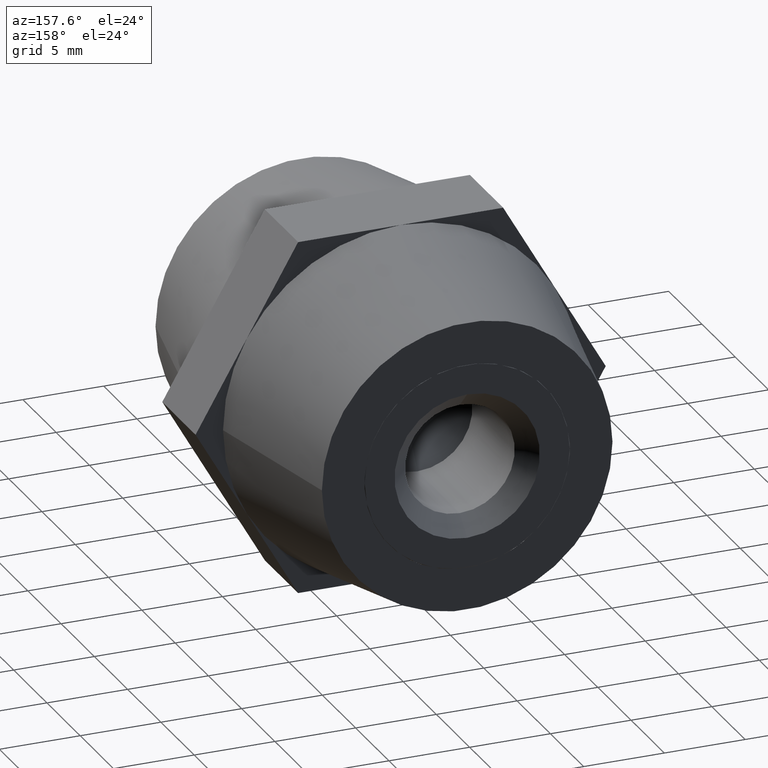
[diagram: clean part render]
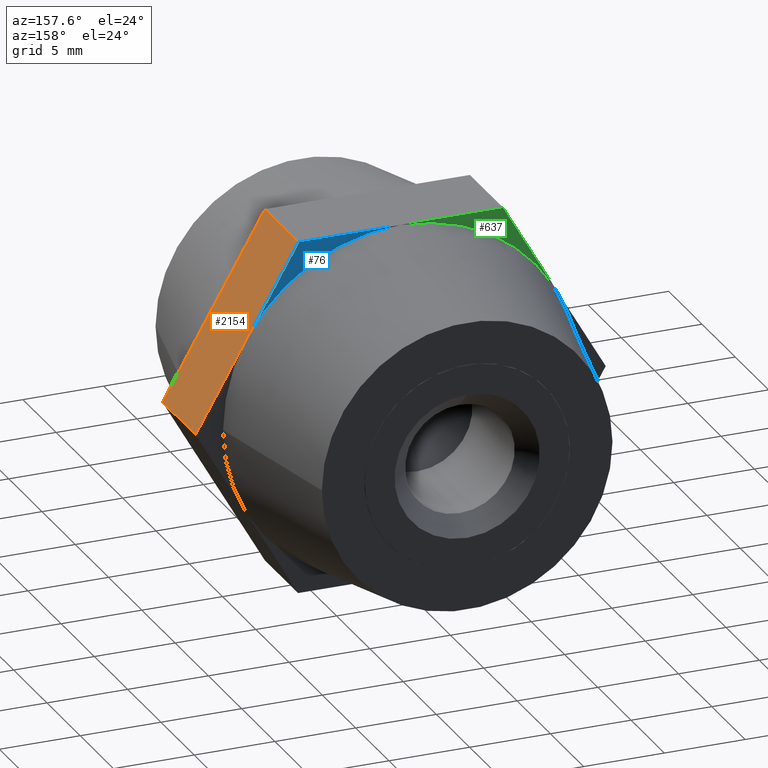
[diagram: same view with three faces highlighted in distinct colors, each labeled with its STEP entity id]
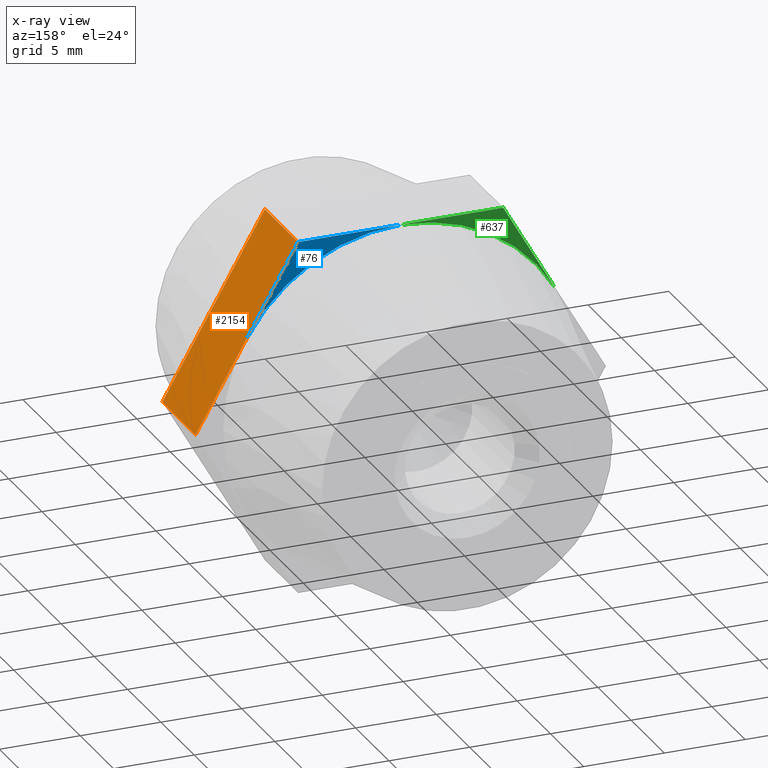
[diagram: x-ray of the same camera — body ghosted, the three highlighted faces saturated]
A machine part, auxiliary view with three faces highlighted in distinct colors.
The next image is the same camera in x-ray (body ghosted, the three faces saturated) — at least one of them is partly hidden behind the body in this view.
Their STEP definitions:

[orange] entity #2154 — the highlighted planar face has unit normal (-0.866, 0, -0.5).
#163 = CARTESIAN_POINT ( 'NONE',  ( 6.350852961085890600, 2.500000000000000000, 11.00000000000000000 ) ) ;
#280 = DIRECTION ( 'NONE',  ( 0.4999999999999998900, 0.0000000000000000000, -0.8660254037844387100 ) ) ;
#287 = LINE ( 'NONE', #866, #649 ) ;
#342 = LINE ( 'NONE', #3532, #3034 ) ;
#402 = ORIENTED_EDGE ( 'NONE', *, *, #3662, .T. ) ;
#438 = CARTESIAN_POINT ( 'NONE',  ( 6.350852961085890600, 2.500000000000000000, 11.00000000000000000 ) ) ;
#454 = CARTESIAN_POINT ( 'NONE',  ( 6.350852961085890600, -2.500000000000000000, 11.00000000000000000 ) ) ;
#530 = CARTESIAN_POINT ( 'NONE',  ( 6.350852961085890600, 2.500000000000000000, 11.00000000000000000 ) ) ;
#582 = VERTEX_POINT ( 'NONE', #2719 ) ;
#649 = VECTOR ( 'NONE', #1451, 1000.000000000000000 ) ;
#749 = CARTESIAN_POINT ( 'NONE',  ( 6.350852961085890600, -2.500000000000000000, 11.00000000000000000 ) ) ;
#866 = CARTESIAN_POINT ( 'NONE',  ( 6.350852961085890600, -2.500000000000000000, 11.00000000000000000 ) ) ;
#981 = EDGE_LOOP ( 'NONE', ( #402, #2869, #2472, #2764, #1196, #2899 ) ) ;
#991 = VECTOR ( 'NONE', #2222, 1000.000000000000000 ) ;
#1045 = LINE ( 'NONE', #2607, #3100 ) ;
#1065 = DIRECTION ( 'NONE',  ( -0.8660254037844387100, 0.0000000000000000000, -0.4999999999999998900 ) ) ;
#1103 = EDGE_CURVE ( 'NONE', #582, #2452, #342, .T. ) ;
#1175 = DIRECTION ( 'NONE',  ( 0.0000000000000000000, -1.000000000000000000, 0.0000000000000000000 ) ) ;
#1196 = ORIENTED_EDGE ( 'NONE', *, *, #2389, .F. ) ;
#1336 = VERTEX_POINT ( 'NONE', #2450 ) ;
#1451 = DIRECTION ( 'NONE',  ( 0.4999999999999998900, 0.0000000000000000000, -0.8660254037844387100 ) ) ;
#1474 = EDGE_CURVE ( 'NONE', #1336, #2452, #2645, .T. ) ;
#1543 = AXIS2_PLACEMENT_3D ( 'NONE', #3109, #1065, #3092 ) ;
#1662 = CARTESIAN_POINT ( 'NONE',  ( 12.70170592217176000, -2.500000000000000000, -2.884158672701469700E-015 ) ) ;
#1794 = EDGE_CURVE ( 'NONE', #3060, #582, #1045, .T. ) ;
#1958 = LINE ( 'NONE', #438, #2054 ) ;
#2054 = VECTOR ( 'NONE', #3084, 1000.000000000000000 ) ;
#2154 = ADVANCED_FACE ( 'NONE', ( #3475 ), #2817, .F. ) ;
#2222 = DIRECTION ( 'NONE',  ( 0.4999999999999998900, 0.0000000000000000000, -0.8660254037844387100 ) ) ;
#2389 = EDGE_CURVE ( 'NONE', #3436, #3060, #1958, .T. ) ;
#2450 = CARTESIAN_POINT ( 'NONE',  ( 9.526279441628831900, -2.500000000000000000, 5.500000000000000000 ) ) ;
#2452 = VERTEX_POINT ( 'NONE', #1662 ) ;
#2472 = ORIENTED_EDGE ( 'NONE', *, *, #1103, .F. ) ;
#2581 = DIRECTION ( 'NONE',  ( 0.0000000000000000000, -1.000000000000000000, 0.0000000000000000000 ) ) ;
#2607 = CARTESIAN_POINT ( 'NONE',  ( 6.350852961085890600, 2.500000000000000000, 11.00000000000000000 ) ) ;
#2645 = LINE ( 'NONE', #749, #991 ) ;
#2719 = CARTESIAN_POINT ( 'NONE',  ( 12.70170592217176000, 2.500000000000000000, -2.884158672701469700E-015 ) ) ;
#2764 = ORIENTED_EDGE ( 'NONE', *, *, #1794, .F. ) ;
#2777 = EDGE_CURVE ( 'NONE', #3436, #3341, #3335, .T. ) ;
#2817 = PLANE ( 'NONE',  #1543 ) ;
#2869 = ORIENTED_EDGE ( 'NONE', *, *, #1474, .T. ) ;
#2899 = ORIENTED_EDGE ( 'NONE', *, *, #2777, .T. ) ;
#3034 = VECTOR ( 'NONE', #1175, 1000.000000000000000 ) ;
#3060 = VERTEX_POINT ( 'NONE', #3597 ) ;
#3084 = DIRECTION ( 'NONE',  ( 0.4999999999999998900, 0.0000000000000000000, -0.8660254037844387100 ) ) ;
#3092 = DIRECTION ( 'NONE',  ( -0.4999999999999998900, 0.0000000000000000000, 0.8660254037844387100 ) ) ;
#3100 = VECTOR ( 'NONE', #280, 1000.000000000000000 ) ;
#3109 = CARTESIAN_POINT ( 'NONE',  ( 6.350852961085890600, 2.500000000000000000, 11.00000000000000000 ) ) ;
#3335 = LINE ( 'NONE', #530, #3794 ) ;
#3341 = VERTEX_POINT ( 'NONE', #454 ) ;
#3436 = VERTEX_POINT ( 'NONE', #163 ) ;
#3475 = FACE_OUTER_BOUND ( 'NONE', #981, .T. ) ;
#3532 = CARTESIAN_POINT ( 'NONE',  ( 12.70170592217176000, 2.500000000000000000, -2.884158672701469700E-015 ) ) ;
#3597 = CARTESIAN_POINT ( 'NONE',  ( 9.526279441628831900, 2.500000000000000000, 5.500000000000000000 ) ) ;
#3662 = EDGE_CURVE ( 'NONE', #3341, #1336, #287, .T. ) ;
#3794 = VECTOR ( 'NONE', #2581, 1000.000000000000000 ) ;

[blue] entity #76 — the highlighted planar face has unit normal (0, 1, 0).
#6 = AXIS2_PLACEMENT_3D ( 'NONE', #2861, #1400, #1692 ) ;
#76 = ADVANCED_FACE ( 'NONE', ( #3772 ), #3170, .T. ) ;
#89 = CARTESIAN_POINT ( 'NONE',  ( 1.925929944387235000E-031, 2.500000000000000000, 11.00000000000000000 ) ) ;
#163 = CARTESIAN_POINT ( 'NONE',  ( 6.350852961085890600, 2.500000000000000000, 11.00000000000000000 ) ) ;
#173 = VECTOR ( 'NONE', #1306, 1000.000000000000000 ) ;
#187 = ORIENTED_EDGE ( 'NONE', *, *, #2801, .F. ) ;
#191 = CARTESIAN_POINT ( 'NONE',  ( -6.350852961085890600, 2.500000000000000000, 11.00000000000000000 ) ) ;
#438 = CARTESIAN_POINT ( 'NONE',  ( 6.350852961085890600, 2.500000000000000000, 11.00000000000000000 ) ) ;
#1145 = CARTESIAN_POINT ( 'NONE',  ( 0.0000000000000000000, 2.500000000000000000, 0.0000000000000000000 ) ) ;
#1295 = VERTEX_POINT ( 'NONE', #89 ) ;
#1306 = DIRECTION ( 'NONE',  ( 1.000000000000000000, 0.0000000000000000000, 0.0000000000000000000 ) ) ;
#1400 = DIRECTION ( 'NONE',  ( -1.224646799147352000E-016, 1.000000000000000000, 0.0000000000000000000 ) ) ;
#1661 = DIRECTION ( 'NONE',  ( 0.0000000000000000000, 0.0000000000000000000, 1.000000000000000000 ) ) ;
#1692 = DIRECTION ( 'NONE',  ( -1.000000000000000000, -1.182766006347823100E-016, 0.0000000000000000000 ) ) ;
#1823 = LINE ( 'NONE', #191, #173 ) ;
#1834 = ORIENTED_EDGE ( 'NONE', *, *, #2217, .T. ) ;
#1861 = CIRCLE ( 'NONE', #6, 11.00000000000000000 ) ;
#1958 = LINE ( 'NONE', #438, #2054 ) ;
#2054 = VECTOR ( 'NONE', #3084, 1000.000000000000000 ) ;
#2217 = EDGE_CURVE ( 'NONE', #1295, #3436, #1823, .T. ) ;
#2389 = EDGE_CURVE ( 'NONE', #3436, #3060, #1958, .T. ) ;
#2801 = EDGE_CURVE ( 'NONE', #1295, #3060, #1861, .T. ) ;
#2861 = CARTESIAN_POINT ( 'NONE',  ( 1.224646799147351900E-015, 2.500000000000000000, 0.0000000000000000000 ) ) ;
#2913 = ORIENTED_EDGE ( 'NONE', *, *, #2389, .T. ) ;
#3060 = VERTEX_POINT ( 'NONE', #3597 ) ;
#3084 = DIRECTION ( 'NONE',  ( 0.4999999999999998900, 0.0000000000000000000, -0.8660254037844387100 ) ) ;
#3157 = DIRECTION ( 'NONE',  ( 0.0000000000000000000, 1.000000000000000000, 0.0000000000000000000 ) ) ;
#3170 = PLANE ( 'NONE',  #3255 ) ;
#3255 = AXIS2_PLACEMENT_3D ( 'NONE', #1145, #3157, #1661 ) ;
#3367 = EDGE_LOOP ( 'NONE', ( #187, #1834, #2913 ) ) ;
#3436 = VERTEX_POINT ( 'NONE', #163 ) ;
#3597 = CARTESIAN_POINT ( 'NONE',  ( 9.526279441628831900, 2.500000000000000000, 5.500000000000000000 ) ) ;
#3772 = FACE_OUTER_BOUND ( 'NONE', #3367, .T. ) ;

[green] entity #637 — the highlighted planar face has unit normal (0, 1, 0).
#38 = CARTESIAN_POINT ( 'NONE',  ( -6.350852961085890600, 2.500000000000000000, 11.00000000000000000 ) ) ;
#57 = ORIENTED_EDGE ( 'NONE', *, *, #2910, .T. ) ;
#69 = LINE ( 'NONE', #3190, #2007 ) ;
#89 = CARTESIAN_POINT ( 'NONE',  ( 1.925929944387235000E-031, 2.500000000000000000, 11.00000000000000000 ) ) ;
#99 = DIRECTION ( 'NONE',  ( 0.0000000000000000000, 0.0000000000000000000, 1.000000000000000000 ) ) ;
#188 = CARTESIAN_POINT ( 'NONE',  ( -9.526279441628831900, 2.500000000000000000, 5.500000000000000000 ) ) ;
#343 = DIRECTION ( 'NONE',  ( -1.000000000000000000, -1.182766006347823100E-016, 0.0000000000000000000 ) ) ;
#345 = EDGE_LOOP ( 'NONE', ( #452, #57, #2230 ) ) ;
#452 = ORIENTED_EDGE ( 'NONE', *, *, #1121, .F. ) ;
#573 = VECTOR ( 'NONE', #933, 1000.000000000000000 ) ;
#637 = ADVANCED_FACE ( 'NONE', ( #2595 ), #1283, .T. ) ;
#676 = CARTESIAN_POINT ( 'NONE',  ( 0.0000000000000000000, 2.500000000000000000, 0.0000000000000000000 ) ) ;
#702 = CIRCLE ( 'NONE', #2838, 11.00000000000000000 ) ;
#933 = DIRECTION ( 'NONE',  ( 1.000000000000000000, 0.0000000000000000000, 0.0000000000000000000 ) ) ;
#1121 = EDGE_CURVE ( 'NONE', #3363, #1295, #702, .T. ) ;
#1222 = EDGE_CURVE ( 'NONE', #1353, #1295, #2908, .T. ) ;
#1283 = PLANE ( 'NONE',  #3131 ) ;
#1295 = VERTEX_POINT ( 'NONE', #89 ) ;
#1353 = VERTEX_POINT ( 'NONE', #1563 ) ;
#1563 = CARTESIAN_POINT ( 'NONE',  ( -6.350852961085890600, 2.500000000000000000, 11.00000000000000000 ) ) ;
#2007 = VECTOR ( 'NONE', #3744, 1000.000000000000000 ) ;
#2097 = DIRECTION ( 'NONE',  ( -1.224646799147352000E-016, 1.000000000000000000, 0.0000000000000000000 ) ) ;
#2177 = DIRECTION ( 'NONE',  ( 0.0000000000000000000, 1.000000000000000000, 0.0000000000000000000 ) ) ;
#2230 = ORIENTED_EDGE ( 'NONE', *, *, #1222, .T. ) ;
#2595 = FACE_OUTER_BOUND ( 'NONE', #345, .T. ) ;
#2838 = AXIS2_PLACEMENT_3D ( 'NONE', #3277, #2097, #343 ) ;
#2908 = LINE ( 'NONE', #38, #573 ) ;
#2910 = EDGE_CURVE ( 'NONE', #3363, #1353, #69, .T. ) ;
#3131 = AXIS2_PLACEMENT_3D ( 'NONE', #676, #2177, #99 ) ;
#3190 = CARTESIAN_POINT ( 'NONE',  ( -12.70170592217176000, 2.500000000000000000, 1.115640536844243800E-015 ) ) ;
#3277 = CARTESIAN_POINT ( 'NONE',  ( 1.224646799147351900E-015, 2.500000000000000000, 0.0000000000000000000 ) ) ;
#3363 = VERTEX_POINT ( 'NONE', #188 ) ;
#3744 = DIRECTION ( 'NONE',  ( 0.4999999999999998900, 0.0000000000000000000, 0.8660254037844387100 ) ) ;